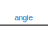
[diagram: root canvas - part 1/4, top left region]
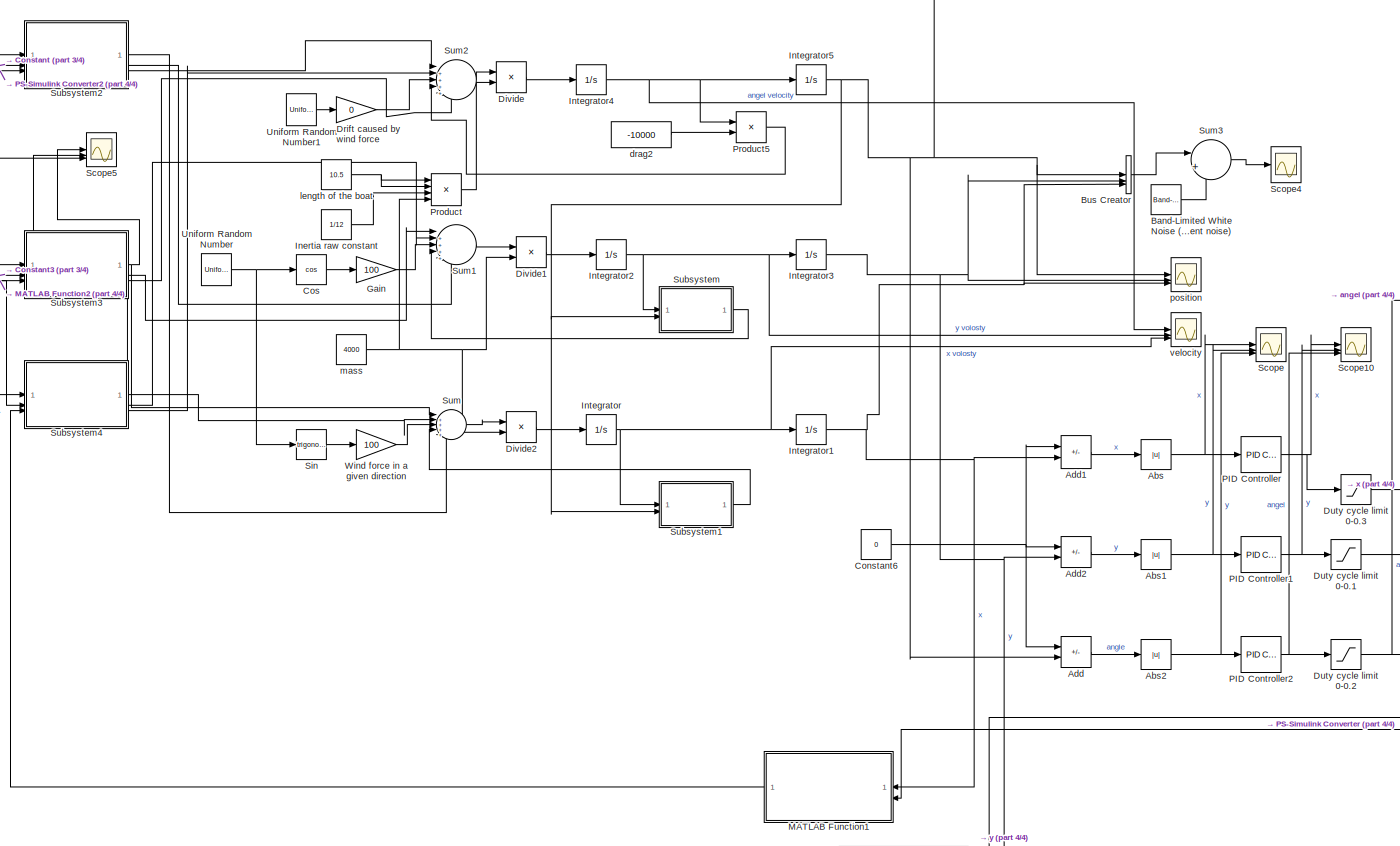
[diagram: root canvas - part 2/4, center side, full height]
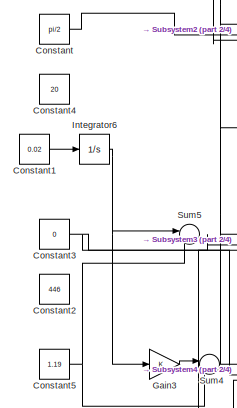
[diagram: root canvas - part 3/4, top left region]
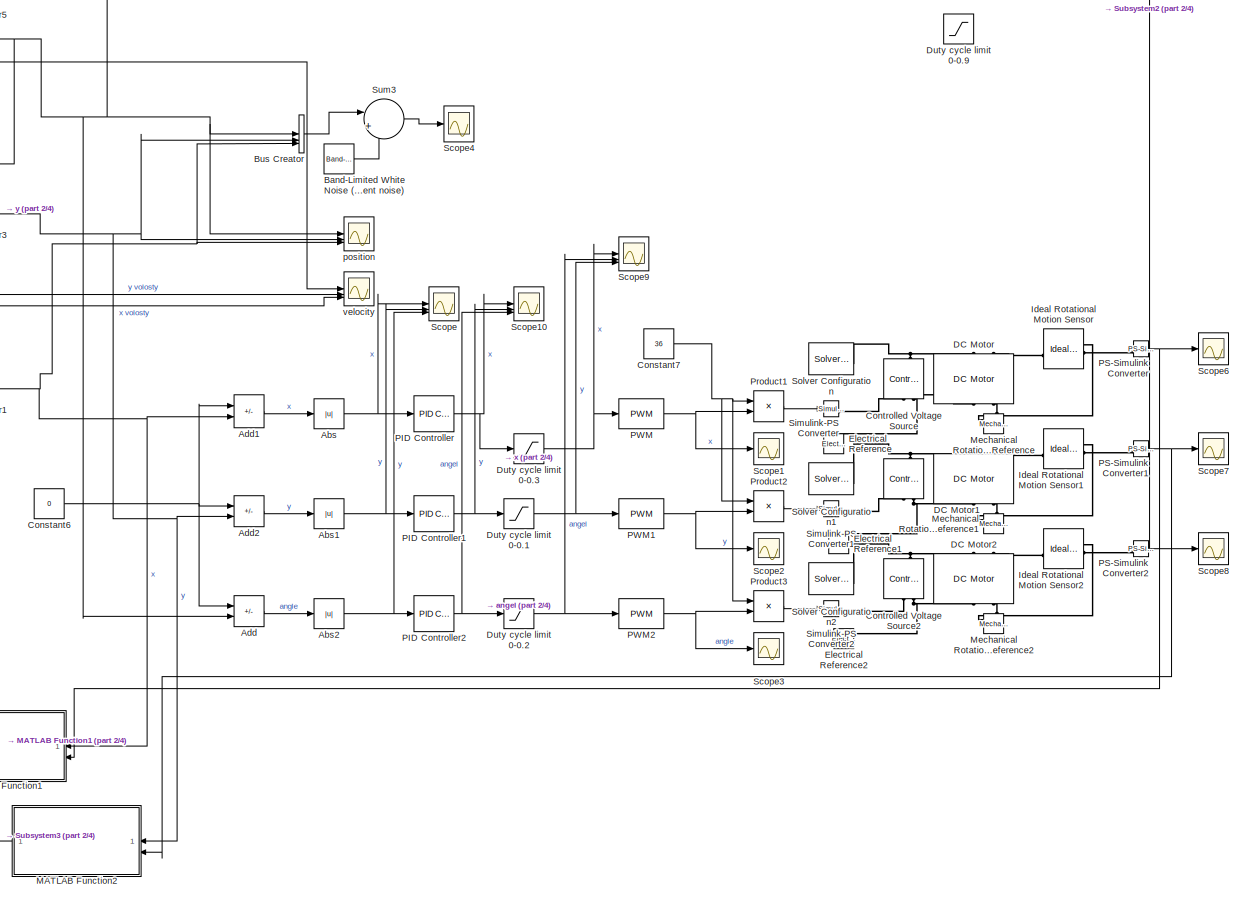
[diagram: root canvas - part 4/4, right side, full height]
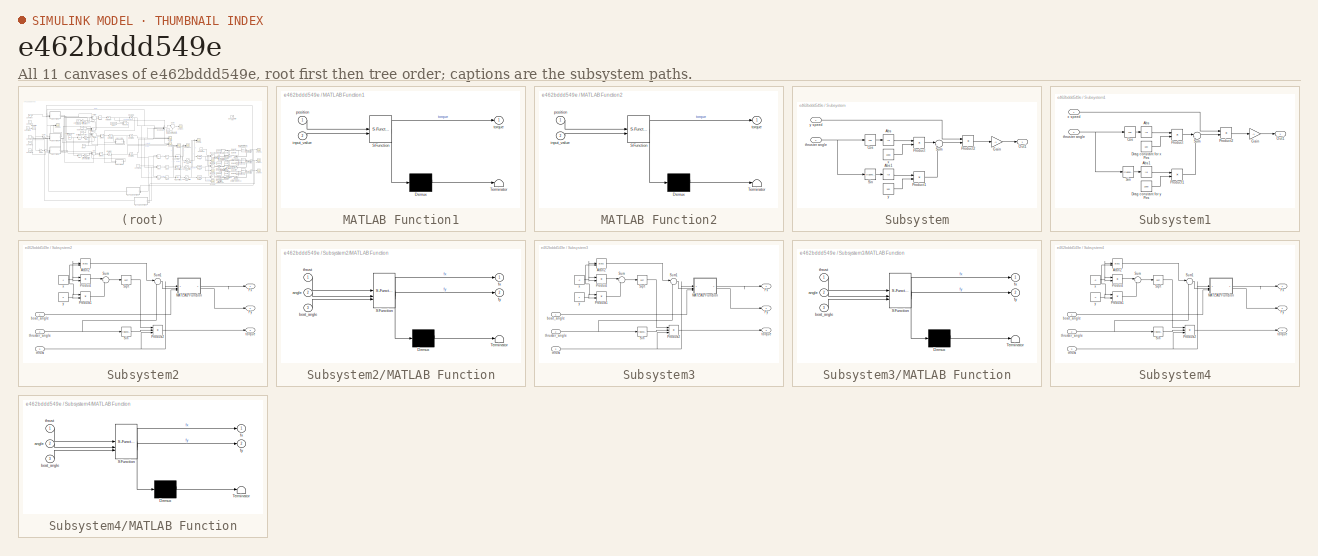
[diagram: thumbnail index - all 11 canvases of the model, root first then tree order]
MODEL slx_e462bddd549e
KIND model
CONFIG AbsTol = auto
CONFIG EnableMultiTasking = off
CONFIG FixedStep = auto
CONFIG MaxStep = auto
CONFIG MinStep = auto
CONFIG RelTol = 1e-3
CONFIG SampleTimeConstraint = Unconstrained
CONFIG SolverName = VariableStepAuto
CONFIG StartTime = 0.0
CONFIG StopTime = 1000.0
BLOCK [Reference]     REF=fl_lib/Electrical/Electrical Sources/Controlled Voltage
Source
  NameLocation = right
  SourceBlock = fl_lib/Electrical/Electrical Sources/Controlled Voltage\nSource
  SourceType = Controlled Voltage\nSource
BLOCK [Abs] Abs
  SaturateOnIntegerOverflow = off
BLOCK [Abs] Abs1
  SaturateOnIntegerOverflow = off
BLOCK [Abs] Abs2
  SaturateOnIntegerOverflow = off
BLOCK [Sum] Add
  IconShape = rectangular
  Inputs = +-
BLOCK [Sum] Add1
  IconShape = rectangular
  Inputs = +-
BLOCK [Sum] Add2
  IconShape = rectangular
  Inputs = +-
BLOCK [Reference] Band-Limited White Noise (Measurement noise)  REF=simulink/Sources/Band-Limited
White Noise
  SourceBlock = simulink/Sources/Band-Limited\nWhite Noise
  SourceType = Band-Limited White Noise.
BLOCK [BusCreator] Bus Creator
  DisplayOption = bar
  InheritFromInputs = on
  Inputs = 3
BLOCK [Constant] Constant
  Value = pi/2
BLOCK [Constant] Constant1
  Value = 0.02
BLOCK [Constant] Constant2
  Value = 446
BLOCK [Constant] Constant3
  Value = 0
BLOCK [Constant] Constant4
  Value = 20
BLOCK [Constant] Constant5
  Value = 1.19
BLOCK [Constant] Constant6
  Value = 0
BLOCK [Constant] Constant7
  Value = 36
BLOCK [Reference] Controlled Voltage Source  REF=fl_lib/Electrical/Electrical Sources/Controlled Voltage
Source
  NameLocation = right
  SourceBlock = fl_lib/Electrical/Electrical Sources/Controlled Voltage\nSource
  SourceType = Controlled Voltage\nSource
BLOCK [Reference] Controlled Voltage Source2  REF=fl_lib/Electrical/Electrical Sources/Controlled Voltage
Source
  NameLocation = right
  SourceBlock = fl_lib/Electrical/Electrical Sources/Controlled Voltage\nSource
  SourceType = Controlled Voltage\nSource
BLOCK [Trigonometry] Cos
  Operator = cos
BLOCK [Reference] DC Motor  REF=ee_lib/Electromechanical/Brushed Motors/DC Motor
  NameLocation = right
  SourceBlock = ee_lib/Electromechanical/Brushed Motors/DC Motor
  SourceType = DC Motor
BLOCK [Reference] DC Motor1  REF=ee_lib/Electromechanical/Brushed Motors/DC Motor
  NameLocation = right
  SourceBlock = ee_lib/Electromechanical/Brushed Motors/DC Motor
  SourceType = DC Motor
BLOCK [Reference] DC Motor2  REF=ee_lib/Electromechanical/Brushed Motors/DC Motor
  NameLocation = right
  SourceBlock = ee_lib/Electromechanical/Brushed Motors/DC Motor
  SourceType = DC Motor
BLOCK [Product] Divide
  Inputs = */
BLOCK [Product] Divide1
  Inputs = */
BLOCK [Product] Divide2
  Inputs = */
BLOCK [Gain] Drift caused by wind force
  Gain = 0
BLOCK [Saturate] Duty cycle limit 0-0.1
  LowerLimit = 0
  UpperLimit = 0.9
BLOCK [Saturate] Duty cycle limit 0-0.2
  LowerLimit = 0
  UpperLimit = 0.9
BLOCK [Saturate] Duty cycle limit 0-0.3
  LowerLimit = 0
  UpperLimit = 0.9
BLOCK [Saturate] Duty cycle limit 0-0.9
  LowerLimit = 0
  UpperLimit = 0.9
BLOCK [Reference] Electrical Reference  REF=fl_lib/Electrical/Electrical Elements/Electrical Reference
  NameLocation = right
  SourceBlock = fl_lib/Electrical/Electrical Elements/Electrical Reference
  SourceType = Electrical Reference
BLOCK [Reference] Electrical Reference1  REF=fl_lib/Electrical/Electrical Elements/Electrical Reference
  NameLocation = right
  SourceBlock = fl_lib/Electrical/Electrical Elements/Electrical Reference
  SourceType = Electrical Reference
BLOCK [Reference] Electrical Reference2  REF=fl_lib/Electrical/Electrical Elements/Electrical Reference
  NameLocation = right
  SourceBlock = fl_lib/Electrical/Electrical Elements/Electrical Reference
  SourceType = Electrical Reference
BLOCK [Gain] Gain
  Gain = 100
BLOCK [Gain] Gain3
BLOCK [Reference] Ideal Rotational Motion Sensor  REF=fl_lib/Mechanical/Mechanical Sensors/Ideal Rotational
Motion Sensor
  SourceBlock = fl_lib/Mechanical/Mechanical Sensors/Ideal Rotational\nMotion Sensor
  SourceType = Ideal Rotational\nMotion Sensor
BLOCK [Reference] Ideal Rotational Motion Sensor1  REF=fl_lib/Mechanical/Mechanical Sensors/Ideal Rotational
Motion Sensor
  SourceBlock = fl_lib/Mechanical/Mechanical Sensors/Ideal Rotational\nMotion Sensor
  SourceType = Ideal Rotational\nMotion Sensor
BLOCK [Reference] Ideal Rotational Motion Sensor2  REF=fl_lib/Mechanical/Mechanical Sensors/Ideal Rotational
Motion Sensor
  SourceBlock = fl_lib/Mechanical/Mechanical Sensors/Ideal Rotational\nMotion Sensor
  SourceType = Ideal Rotational\nMotion Sensor
BLOCK [Constant] Inertia raw constant
  Value = 1/12
BLOCK [Integrator] Integrator
BLOCK [Integrator] Integrator1
BLOCK [Integrator] Integrator2
BLOCK [Integrator] Integrator3
BLOCK [Integrator] Integrator4
BLOCK [Integrator] Integrator5
BLOCK [Integrator] Integrator6
  InitialCondition = pi/2
BLOCK [SubSystem] MATLAB Function1
  ErrorFcn = Stateflow.Translate.translate
  PermitHierarchicalResolution = ExplicitOnly
  SFBlockType = MATLAB Function
  TreatAsAtomicUnit = on
BLOCK [Demux] MATLAB Function1/ Demux 
  Outputs = 1
BLOCK [S-Function] MATLAB Function1/ SFunction 
  EnableBusSupport = on
  FunctionName = sf_sfun
  PortCounts = [2 2]
  SFcnIsStateOwnerBlock = off
  SFunctionDeploymentMode = off
  Tag = Stateflow S-Function 5
BLOCK [Terminator] MATLAB Function1/ Terminator 
BLOCK [Inport] MATLAB Function1/input_value
  Port = 2
BLOCK [Inport] MATLAB Function1/position
BLOCK [Outport] MATLAB Function1/torque
BLOCK [SubSystem] MATLAB Function2
  ErrorFcn = Stateflow.Translate.translate
  PermitHierarchicalResolution = ExplicitOnly
  SFBlockType = MATLAB Function
  TreatAsAtomicUnit = on
BLOCK [Demux] MATLAB Function2/ Demux 
  Outputs = 1
BLOCK [S-Function] MATLAB Function2/ SFunction 
  EnableBusSupport = on
  FunctionName = sf_sfun
  PortCounts = [2 2]
  SFcnIsStateOwnerBlock = off
  SFunctionDeploymentMode = off
  Tag = Stateflow S-Function 4
BLOCK [Terminator] MATLAB Function2/ Terminator 
BLOCK [Inport] MATLAB Function2/input_value
  Port = 2
BLOCK [Inport] MATLAB Function2/position
BLOCK [Outport] MATLAB Function2/torque
BLOCK [Reference] Mechanical Rotational Reference  REF=fl_lib/Mechanical/Rotational Elements/Mechanical
Rotational Reference
  NameLocation = right
  SourceBlock = fl_lib/Mechanical/Rotational Elements/Mechanical\nRotational Reference
  SourceType = Mechanical\nRotational Reference
BLOCK [Reference] Mechanical Rotational Reference1  REF=fl_lib/Mechanical/Rotational Elements/Mechanical
Rotational Reference
  NameLocation = right
  SourceBlock = fl_lib/Mechanical/Rotational Elements/Mechanical\nRotational Reference
  SourceType = Mechanical\nRotational Reference
BLOCK [Reference] Mechanical Rotational Reference2  REF=fl_lib/Mechanical/Rotational Elements/Mechanical
Rotational Reference
  NameLocation = right
  SourceBlock = fl_lib/Mechanical/Rotational Elements/Mechanical\nRotational Reference
  SourceType = Mechanical\nRotational Reference
BLOCK [Reference] PID Controller  REF=slpidlib/PID Controller
  LibrarySourceBlock = simulink/Continuous/PID Controller
  SourceBlock = slpidlib/PID Controller
  SourceType = PID 1dof
BLOCK [Reference] PID Controller1  REF=slpidlib/PID Controller
  LibrarySourceBlock = simulink/Continuous/PID Controller
  SourceBlock = slpidlib/PID Controller
  SourceType = PID 1dof
BLOCK [Reference] PID Controller2  REF=slpidlib/PID Controller
  LibrarySourceBlock = simulink/Continuous/PID Controller
  SourceBlock = slpidlib/PID Controller
  SourceType = PID 1dof
BLOCK [Reference] PS-Simulink Converter  REF=nesl_utility/PS-Simulink
Converter
  SourceBlock = nesl_utility/PS-Simulink\nConverter
  SourceType = PS-Simulink\nConverter
BLOCK [Reference] PS-Simulink Converter1  REF=nesl_utility/PS-Simulink
Converter
  SourceBlock = nesl_utility/PS-Simulink\nConverter
  SourceType = PS-Simulink\nConverter
BLOCK [Reference] PS-Simulink Converter2  REF=nesl_utility/PS-Simulink
Converter
  SourceBlock = nesl_utility/PS-Simulink\nConverter
  SourceType = PS-Simulink\nConverter
BLOCK [Reference] PWM  REF=simulink/Discontinuities/PWM
  DisableCoverage = on
  SourceBlock = simulink/Discontinuities/PWM
  SourceType = PWM
BLOCK [Reference] PWM1  REF=simulink/Discontinuities/PWM
  DisableCoverage = on
  SourceBlock = simulink/Discontinuities/PWM
  SourceType = PWM
BLOCK [Reference] PWM2  REF=simulink/Discontinuities/PWM
  DisableCoverage = on
  SourceBlock = simulink/Discontinuities/PWM
  SourceType = PWM
BLOCK [Product] Product
  Inputs = 4
BLOCK [Product] Product1
BLOCK [Product] Product2
BLOCK [Product] Product3
BLOCK [Product] Product5
BLOCK [Scope] Scope
  Floating = off
  NumInputPorts = 3
  ScopeSpecificationString = Simulink.scopes.TimeScopeBlockCfg('CurrentConfiguration', extmgr.ConfigurationSet(extmgr.Configuration('Core','General UI',true),extmgr.Configuration('Core','Source UI',true),extmgr.Configuration('Sources','WiredSimulink',true,'DataLoggingVariableName','ScopeData1'),extmgr.Configuration('Visuals','Time Domain',true,'SerializedDisplays',{struct('MinYLimReal','-25.80013','MaxYLimReal','232.20115','Y...<+1536ch>
BLOCK [Scope] Scope1
  Floating = off
  NumInputPorts = 1
  ScopeSpecificationString = Simulink.scopes.TimeScopeBlockCfg('CurrentConfiguration', extmgr.ConfigurationSet(extmgr.Configuration('Core','General UI',true),extmgr.Configuration('Core','Source UI',true),extmgr.Configuration('Sources','WiredSimulink',true,'DataLoggingVariableName','ScopeData2'),extmgr.Configuration('Visuals','Time Domain',true,'SerializedDisplays',{struct('MinYLimReal','-0.125','MaxYLimReal','1.125','YLabelRe...<+1485ch>
BLOCK [Scope] Scope10
  Floating = off
  NumInputPorts = 3
  ScopeSpecificationString = Simulink.scopes.TimeScopeBlockCfg('CurrentConfiguration', extmgr.ConfigurationSet(extmgr.Configuration('Core','General UI',true),extmgr.Configuration('Core','Source UI',true),extmgr.Configuration('Sources','WiredSimulink',true,'DataLoggingVariableName','ScopeData9'),extmgr.Configuration('Visuals','Time Domain',true,'SerializedDisplays',{struct('MinYLimReal','-2896.36826','MaxYLimReal','26067.31378...<+1608ch>
BLOCK [Scope] Scope2
  Floating = off
  NumInputPorts = 1
  ScopeSpecificationString = Simulink.scopes.TimeScopeBlockCfg('CurrentConfiguration', extmgr.ConfigurationSet(extmgr.Configuration('Core','General UI',true),extmgr.Configuration('Core','Source UI',true),extmgr.Configuration('Sources','WiredSimulink',true,'DataLoggingVariableName','ScopeData3'),extmgr.Configuration('Visuals','Time Domain',true,'SerializedDisplays',{struct('MinYLimReal','-0.125','MaxYLimReal','1.125','YLabelRe...<+1482ch>
BLOCK [Scope] Scope3
  Floating = off
  NumInputPorts = 1
  ScopeSpecificationString = Simulink.scopes.TimeScopeBlockCfg('CurrentConfiguration', extmgr.ConfigurationSet(extmgr.Configuration('Core','General UI',true),extmgr.Configuration('Core','Source UI',true),extmgr.Configuration('Sources','WiredSimulink',true,'DataLoggingVariableName','ScopeData4'),extmgr.Configuration('Visuals','Time Domain',true,'SerializedDisplays',{struct('MinYLimReal','-0.125','MaxYLimReal','1.125','YLabelRe...<+1487ch>
BLOCK [Scope] Scope4
  Floating = off
  NumInputPorts = 1
  ScopeSpecificationString = Simulink.scopes.TimeScopeBlockCfg('CurrentConfiguration', extmgr.ConfigurationSet(extmgr.Configuration('Core','General UI',true),extmgr.Configuration('Core','Source UI',true),extmgr.Configuration('Sources','WiredSimulink',true,'DataLoggingVariableName','ScopeData4'),extmgr.Configuration('Visuals','Time Domain',true,'SerializedDisplays',{struct('MinYLimReal','-41.13835','MaxYLimReal','149.57105','Y...<+1508ch>
BLOCK [Scope] Scope5
  Floating = off
  NumInputPorts = 3
  ScopeSpecificationString = Simulink.scopes.TimeScopeBlockCfg('CurrentConfiguration', extmgr.ConfigurationSet(extmgr.Configuration('Core','General UI',true),extmgr.Configuration('Core','Source UI',true),extmgr.Configuration('Sources','WiredSimulink',true,'DataLoggingVariableName','ScopeData1'),extmgr.Configuration('Visuals','Time Domain',true,'SerializedDisplays',{struct('MinYLimReal','-718.52992','MaxYLimReal','719.97429','...<+1525ch>
BLOCK [Scope] Scope6
  Floating = off
  NumInputPorts = 1
  ScopeSpecificationString = Simulink.scopes.TimeScopeBlockCfg('CurrentConfiguration', extmgr.ConfigurationSet(extmgr.Configuration('Core','General UI',true),extmgr.Configuration('Core','Source UI',true),extmgr.Configuration('Sources','WiredSimulink',true,'DataLoggingVariableName','ScopeData5'),extmgr.Configuration('Visuals','Time Domain',true,'SerializedDisplays',{struct('MinYLimReal','-20.14236','MaxYLimReal','644.08797','Y...<+1479ch>
BLOCK [Scope] Scope7
  Floating = off
  NumInputPorts = 1
  ScopeSpecificationString = Simulink.scopes.TimeScopeBlockCfg('CurrentConfiguration', extmgr.ConfigurationSet(extmgr.Configuration('Core','General UI',true),extmgr.Configuration('Core','Source UI',true),extmgr.Configuration('Sources','WiredSimulink',true,'DataLoggingVariableName','ScopeData6'),extmgr.Configuration('Visuals','Time Domain',true,'SerializedDisplays',{struct('MinYLimReal','-20.1396','MaxYLimReal','644.12728','YL...<+1507ch>
BLOCK [Scope] Scope8
  Floating = off
  NumInputPorts = 1
  ScopeSpecificationString = Simulink.scopes.TimeScopeBlockCfg('CurrentConfiguration', extmgr.ConfigurationSet(extmgr.Configuration('Core','General UI',true),extmgr.Configuration('Core','Source UI',true),extmgr.Configuration('Sources','WiredSimulink',true,'DataLoggingVariableName','ScopeData7'),extmgr.Configuration('Visuals','Time Domain',true,'SerializedDisplays',{struct('MinYLimReal','-211.42866','MaxYLimReal','205.78427','...<+1484ch>
BLOCK [Scope] Scope9
  Floating = off
  NumInputPorts = 3
  ScopeSpecificationString = Simulink.scopes.TimeScopeBlockCfg('CurrentConfiguration', extmgr.ConfigurationSet(extmgr.Configuration('Core','General UI',true),extmgr.Configuration('Core','Source UI',true),extmgr.Configuration('Sources','WiredSimulink',true,'DataLoggingVariableName','ScopeData8'),extmgr.Configuration('Visuals','Time Domain',true,'SerializedDisplays',{struct('MinYLimReal','-0.11109','MaxYLimReal','0.9998','YLabe...<+1567ch>
BLOCK [Reference] Simulink-PS Converter  REF=nesl_utility/Simulink-PS
Converter
  SourceBlock = nesl_utility/Simulink-PS\nConverter
  SourceType = Simulink-PS\nConverter
BLOCK [Reference] Simulink-PS Converter1  REF=nesl_utility/Simulink-PS
Converter
  SourceBlock = nesl_utility/Simulink-PS\nConverter
  SourceType = Simulink-PS\nConverter
BLOCK [Reference] Simulink-PS Converter2  REF=nesl_utility/Simulink-PS
Converter
  SourceBlock = nesl_utility/Simulink-PS\nConverter
  SourceType = Simulink-PS\nConverter
BLOCK [Trigonometry] Sin
BLOCK [Reference] Solver Configuration  REF=nesl_utility/Solver
Configuration
  SourceBlock = nesl_utility/Solver\nConfiguration
  SourceType = Solver\nConfiguration
BLOCK [Reference] Solver Configuration1  REF=nesl_utility/Solver
Configuration
  SourceBlock = nesl_utility/Solver\nConfiguration
  SourceType = Solver\nConfiguration
BLOCK [Reference] Solver Configuration2  REF=nesl_utility/Solver
Configuration
  SourceBlock = nesl_utility/Solver\nConfiguration
  SourceType = Solver\nConfiguration
BLOCK [SubSystem] Subsystem
BLOCK [Abs] Subsystem/Abs
  SaturateOnIntegerOverflow = off
BLOCK [Abs] Subsystem/Abs1
  SaturateOnIntegerOverflow = off
BLOCK [Trigonometry] Subsystem/Cos
  Operator = cos
BLOCK [Gain] Subsystem/Gain
  Gain = -1
BLOCK [Outport] Subsystem/Out1
BLOCK [Product] Subsystem/Product
BLOCK [Product] Subsystem/Product1
BLOCK [Product] Subsystem/Product2
BLOCK [Trigonometry] Subsystem/Sin
BLOCK [Sum] Subsystem/Sum
  Inputs = |++
BLOCK [Inport] Subsystem/thruster angle
  Port = 2
BLOCK [Constant] Subsystem/x
  Value = 1000
BLOCK [Constant] Subsystem/y
  Value = 100
BLOCK [Inport] Subsystem/y speed
BLOCK [SubSystem] Subsystem1
BLOCK [Abs] Subsystem1/Abs
  SaturateOnIntegerOverflow = off
BLOCK [Abs] Subsystem1/Abs1
  SaturateOnIntegerOverflow = off
BLOCK [Trigonometry] Subsystem1/Cos
  Operator = cos
BLOCK [Constant] Subsystem1/Drag constant for x Pos
  Value = 100
BLOCK [Constant] Subsystem1/Drag constant for y Pos
  Value = 1000
BLOCK [Gain] Subsystem1/Gain
  Gain = -1
BLOCK [Outport] Subsystem1/Out1
BLOCK [Product] Subsystem1/Product
BLOCK [Product] Subsystem1/Product1
BLOCK [Product] Subsystem1/Product2
BLOCK [Trigonometry] Subsystem1/Sin
BLOCK [Sum] Subsystem1/Sum
  Inputs = |++
BLOCK [Inport] Subsystem1/thruster angle
  Port = 2
BLOCK [Inport] Subsystem1/x speed
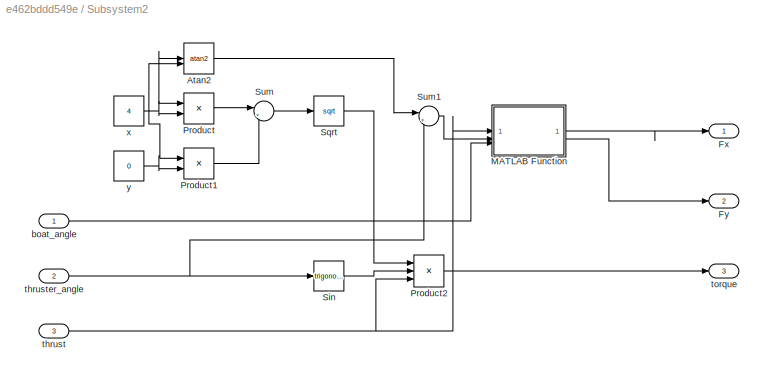
BLOCK [SubSystem] Subsystem2
BLOCK [Trigonometry] Subsystem2/Atan2
  Operator = atan2
BLOCK [Outport] Subsystem2/Fx
BLOCK [Outport] Subsystem2/Fy
  Port = 2
BLOCK [SubSystem] Subsystem2/MATLAB Function
  ErrorFcn = Stateflow.Translate.translate
  PermitHierarchicalResolution = ExplicitOnly
  SFBlockType = MATLAB Function
  TreatAsAtomicUnit = on
BLOCK [Demux] Subsystem2/MATLAB Function/ Demux 
  Outputs = 1
BLOCK [S-Function] Subsystem2/MATLAB Function/ SFunction 
  EnableBusSupport = on
  FunctionName = sf_sfun
  PortCounts = [3 3]
  SFcnIsStateOwnerBlock = off
  SFunctionDeploymentMode = off
  Tag = Stateflow S-Function 2
BLOCK [Terminator] Subsystem2/MATLAB Function/ Terminator 
BLOCK [Inport] Subsystem2/MATLAB Function/angle
  Port = 2
BLOCK [Inport] Subsystem2/MATLAB Function/boat_angle
  Port = 3
BLOCK [Outport] Subsystem2/MATLAB Function/fx
BLOCK [Outport] Subsystem2/MATLAB Function/fy
  Port = 2
BLOCK [Inport] Subsystem2/MATLAB Function/thrust
BLOCK [Product] Subsystem2/Product
BLOCK [Product] Subsystem2/Product1
BLOCK [Product] Subsystem2/Product2
  Inputs = 3
BLOCK [Trigonometry] Subsystem2/Sin
BLOCK [Sqrt] Subsystem2/Sqrt
BLOCK [Sum] Subsystem2/Sum
  Inputs = |++
BLOCK [Sum] Subsystem2/Sum1
  Inputs = |++
BLOCK [Inport] Subsystem2/boat_angle
BLOCK [Inport] Subsystem2/thrust
  Port = 3
BLOCK [Inport] Subsystem2/thruster_angle
  Port = 2
BLOCK [Outport] Subsystem2/torque
  Port = 3
BLOCK [Constant] Subsystem2/x
  Value = 4
BLOCK [Constant] Subsystem2/y
  Value = 0
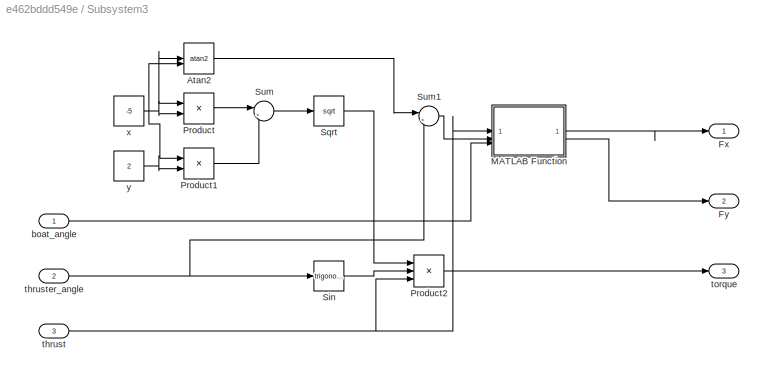
BLOCK [SubSystem] Subsystem3
BLOCK [Trigonometry] Subsystem3/Atan2
  Operator = atan2
BLOCK [Outport] Subsystem3/Fx
BLOCK [Outport] Subsystem3/Fy
  Port = 2
BLOCK [SubSystem] Subsystem3/MATLAB Function
  ErrorFcn = Stateflow.Translate.translate
  PermitHierarchicalResolution = ExplicitOnly
  SFBlockType = MATLAB Function
  TreatAsAtomicUnit = on
BLOCK [Demux] Subsystem3/MATLAB Function/ Demux 
  Outputs = 1
BLOCK [S-Function] Subsystem3/MATLAB Function/ SFunction 
  EnableBusSupport = on
  FunctionName = sf_sfun
  PortCounts = [3 3]
  SFcnIsStateOwnerBlock = off
  SFunctionDeploymentMode = off
  Tag = Stateflow S-Function 1
BLOCK [Terminator] Subsystem3/MATLAB Function/ Terminator 
BLOCK [Inport] Subsystem3/MATLAB Function/angle
  Port = 2
BLOCK [Inport] Subsystem3/MATLAB Function/boat_angle
  Port = 3
BLOCK [Outport] Subsystem3/MATLAB Function/fx
BLOCK [Outport] Subsystem3/MATLAB Function/fy
  Port = 2
BLOCK [Inport] Subsystem3/MATLAB Function/thrust
BLOCK [Product] Subsystem3/Product
BLOCK [Product] Subsystem3/Product1
BLOCK [Product] Subsystem3/Product2
  Inputs = 3
BLOCK [Trigonometry] Subsystem3/Sin
BLOCK [Sqrt] Subsystem3/Sqrt
BLOCK [Sum] Subsystem3/Sum
  Inputs = |++
BLOCK [Sum] Subsystem3/Sum1
  Inputs = |++
BLOCK [Inport] Subsystem3/boat_angle
BLOCK [Inport] Subsystem3/thrust
  Port = 3
BLOCK [Inport] Subsystem3/thruster_angle
  Port = 2
BLOCK [Outport] Subsystem3/torque
  Port = 3
BLOCK [Constant] Subsystem3/x
  Value = -5
BLOCK [Constant] Subsystem3/y
  Value = 2
BLOCK [SubSystem] Subsystem4
BLOCK [Trigonometry] Subsystem4/Atan2
  Operator = atan2
BLOCK [Outport] Subsystem4/Fx
BLOCK [Outport] Subsystem4/Fy
  Port = 2
BLOCK [SubSystem] Subsystem4/MATLAB Function
  ErrorFcn = Stateflow.Translate.translate
  PermitHierarchicalResolution = ExplicitOnly
  SFBlockType = MATLAB Function
  TreatAsAtomicUnit = on
BLOCK [Demux] Subsystem4/MATLAB Function/ Demux 
  Outputs = 1
BLOCK [S-Function] Subsystem4/MATLAB Function/ SFunction 
  EnableBusSupport = on
  FunctionName = sf_sfun
  PortCounts = [3 3]
  SFcnIsStateOwnerBlock = off
  SFunctionDeploymentMode = off
  Tag = Stateflow S-Function 3
BLOCK [Terminator] Subsystem4/MATLAB Function/ Terminator 
BLOCK [Inport] Subsystem4/MATLAB Function/angle
  Port = 2
BLOCK [Inport] Subsystem4/MATLAB Function/boat_angle
  Port = 3
BLOCK [Outport] Subsystem4/MATLAB Function/fx
BLOCK [Outport] Subsystem4/MATLAB Function/fy
  Port = 2
BLOCK [Inport] Subsystem4/MATLAB Function/thrust
BLOCK [Product] Subsystem4/Product
BLOCK [Product] Subsystem4/Product1
BLOCK [Product] Subsystem4/Product2
  Inputs = 3
BLOCK [Trigonometry] Subsystem4/Sin
BLOCK [Sqrt] Subsystem4/Sqrt
BLOCK [Sum] Subsystem4/Sum
  Inputs = |++
BLOCK [Sum] Subsystem4/Sum1
  Inputs = |++
BLOCK [Inport] Subsystem4/boat_angle
BLOCK [Inport] Subsystem4/thrust
  Port = 3
BLOCK [Inport] Subsystem4/thruster_angle
  Port = 2
BLOCK [Outport] Subsystem4/torque
  Port = 3
BLOCK [Constant] Subsystem4/x
  Value = -5
BLOCK [Constant] Subsystem4/y
  Value = -2
BLOCK [Sum] Sum
  Inputs = |+++++
BLOCK [Sum] Sum1
  Inputs = |+++++
BLOCK [Sum] Sum2
  Inputs = |+++++
BLOCK [Sum] Sum3
  Inputs = |++
BLOCK [Sum] Sum4
  Inputs = |+-
BLOCK [Sum] Sum5
  Inputs = |++
BLOCK [UniformRandomNumber] Uniform Random Number
  Maximum = 6.28
  Minimum = 0
  SampleTime = 0.1
  Seed = 0.1
BLOCK [UniformRandomNumber] Uniform Random Number1
  Maximum = 6.28
  Minimum = 0
  SampleTime = 0.1
  Seed = 2
BLOCK [Gain] Wind force in a given direction
  Gain = 100
BLOCK [Constant] drag2
  Value = -10000
BLOCK [Constant] length of the boat
  Value = 10.5
BLOCK [Constant] mass
  Value = 4000
BLOCK [Scope] position
  Floating = off
  NumInputPorts = 3
  ScopeSpecificationString = Simulink.scopes.TimeScopeBlockCfg('CurrentConfiguration', extmgr.ConfigurationSet(extmgr.Configuration('Core','General UI',true),extmgr.Configuration('Core','Source UI',true),extmgr.Configuration('Sources','WiredSimulink',true,'DataLoggingVariableName','ScopeData3'),extmgr.Configuration('Visuals','Time Domain',true,'SerializedDisplays',{struct('MinYLimReal','-40.05187','MaxYLimReal','144.81588','Y...<+1854ch>
BLOCK [Scope] velocity
  Floating = off
  NumInputPorts = 3
  ScopeSpecificationString = Simulink.scopes.TimeScopeBlockCfg('CurrentConfiguration', extmgr.ConfigurationSet(extmgr.Configuration('Core','General UI',true),extmgr.Configuration('Core','Source UI',true),extmgr.Configuration('Sources','WiredSimulink',true,'DataLoggingVariableName','ScopeData2'),extmgr.Configuration('Visuals','Time Domain',true,'SerializedDisplays',{struct('MinYLimReal','-0.60739','MaxYLimReal','0.70276','YLab...<+1845ch>
NET Abs1:1 -> PID Controller1:1, Scope:2
NET Abs2:1 -> PID Controller2:1, Scope:3
NET Abs:1 -> PID Controller:1, Scope:1
LINE Add1:1 -> Abs:1
LINE Add2:1 -> Abs1:1
LINE Add:1 -> Abs2:1
LINE Band-Limited White Noise (Measurement noise):1 -> Sum3:2
LINE Bus Creator:1 -> Sum3:1
LINE Constant1:1 -> Integrator6:1
NET Constant3:1 -> Subsystem3:2, Subsystem4:2
NET Constant5:1 -> Sum4:2, Sum5:2
NET Constant6:1 -> Add1:1, Add2:1, Add:1
NET Constant7:1 -> Product1:1, Product2:1, Product3:1
LINE Constant:1 -> Subsystem2:2
LINE Cos:1 -> Gain:1
LINE Divide1:1 -> Integrator2:1
LINE Divide2:1 -> Integrator:1
LINE Divide:1 -> Integrator4:1
LINE Drift caused by wind force:1 -> Sum2:3
NET Duty cycle limit 0-0.1:1 -> PWM1:1, Scope9:3
NET Duty cycle limit 0-0.2:1 -> PWM2:1, Scope9:2
NET Duty cycle limit 0-0.3:1 -> PWM:1, Scope9:1
LINE Gain3:1 -> Sum4:1
LINE Gain:1 -> Sum1:3
LINE Inertia raw constant:1 -> Product:3
NET Integrator1:1 -> Add1:2, Bus Creator:3, MATLAB Function1:1, position:3
NET Integrator2:1 -> Integrator3:1, Subsystem:1, velocity:2
NET Integrator3:1 -> Add2:2, Bus Creator:2, MATLAB Function2:1, position:2
NET Integrator4:1 -> Integrator5:1, Product5:1, velocity:1
NET Integrator5:1 -> Add:2, Bus Creator:1, Scope5:3, Subsystem1:2, Subsystem2:1, Subsystem3:1, Subsystem4:1, Subsystem:2, position:1
NET Integrator6:1 -> Gain3:1, Sum5:1
NET Integrator:1 -> Integrator1:1, Subsystem1:1, velocity:3
LINE MATLAB Function1:1 -> Subsystem4:3
LINE MATLAB Function2:1 -> Subsystem3:3
NET PID Controller1:1 -> Duty cycle limit 0-0.1:1, Scope10:2
NET PID Controller2:1 -> Duty cycle limit 0-0.2:1, Scope10:3
NET PID Controller:1 -> Duty cycle limit 0-0.3:1, Scope10:1
NET PS-Simulink Converter1:1 -> MATLAB Function2:2, Scope7:1
NET PS-Simulink Converter2:1 -> Scope8:1, Subsystem2:3
NET PS-Simulink Converter:1 -> MATLAB Function1:2, Scope6:1
NET PWM1:1 -> Product2:2, Scope2:1
NET PWM2:1 -> Product3:2, Scope3:1
NET PWM:1 -> Product1:2, Scope1:1
LINE Product1:1 -> Simulink-PS Converter:1
LINE Product2:1 -> Simulink-PS Converter1:1
LINE Product3:1 -> Simulink-PS Converter2:1
LINE Product5:1 -> Sum2:4
LINE Product:1 -> Divide:2
LINE Sin:1 -> Wind force in a given direction:1
LINE Subsystem/Abs1:1 -> Subsystem/Product1:1
LINE Subsystem/Abs:1 -> Subsystem/Product:1
LINE Subsystem/Cos:1 -> Subsystem/Abs:1
LINE Subsystem/Gain:1 -> Subsystem/Out1:1
LINE Subsystem/Product1:1 -> Subsystem/Sum:2
LINE Subsystem/Product2:1 -> Subsystem/Gain:1
LINE Subsystem/Product:1 -> Subsystem/Sum:1
LINE Subsystem/Sin:1 -> Subsystem/Abs1:1
LINE Subsystem/Sum:1 -> Subsystem/Product2:2
NET Subsystem/thruster angle:1 -> Subsystem/Cos:1, Subsystem/Sin:1
LINE Subsystem/x:1 -> Subsystem/Product:2
LINE Subsystem/y speed:1 -> Subsystem/Product2:1
LINE Subsystem/y:1 -> Subsystem/Product1:2
LINE Subsystem1/Abs1:1 -> Subsystem1/Product1:1
LINE Subsystem1/Abs:1 -> Subsystem1/Product:1
LINE Subsystem1/Cos:1 -> Subsystem1/Abs:1
LINE Subsystem1/Drag constant for x Pos:1 -> Subsystem1/Product:2
LINE Subsystem1/Drag constant for y Pos:1 -> Subsystem1/Product1:2
LINE Subsystem1/Gain:1 -> Subsystem1/Out1:1
LINE Subsystem1/Product1:1 -> Subsystem1/Sum:2
LINE Subsystem1/Product2:1 -> Subsystem1/Gain:1
LINE Subsystem1/Product:1 -> Subsystem1/Sum:1
LINE Subsystem1/Sin:1 -> Subsystem1/Abs1:1
LINE Subsystem1/Sum:1 -> Subsystem1/Product2:2
NET Subsystem1/thruster angle:1 -> Subsystem1/Cos:1, Subsystem1/Sin:1
LINE Subsystem1/x speed:1 -> Subsystem1/Product2:1
LINE Subsystem1:1 -> Sum:4
LINE Subsystem2/Atan2:1 -> Subsystem2/Sum1:1
LINE Subsystem2/MATLAB Function:1 -> Subsystem2/Fx:1
LINE Subsystem2/MATLAB Function:2 -> Subsystem2/Fy:1
LINE Subsystem2/Product1:1 -> Subsystem2/Sum:2
LINE Subsystem2/Product2:1 -> Subsystem2/torque:1
LINE Subsystem2/Product:1 -> Subsystem2/Sum:1
LINE Subsystem2/Sin:1 -> Subsystem2/Product2:2
LINE Subsystem2/Sqrt:1 -> Subsystem2/Product2:1
LINE Subsystem2/Sum1:1 -> Subsystem2/MATLAB Function:2
LINE Subsystem2/Sum:1 -> Subsystem2/Sqrt:1
LINE Subsystem2/boat_angle:1 -> Subsystem2/MATLAB Function:3
NET Subsystem2/thrust:1 -> Subsystem2/MATLAB Function:1, Subsystem2/Product2:3
NET Subsystem2/thruster_angle:1 -> Subsystem2/Sin:1, Subsystem2/Sum1:2
NET Subsystem2/x:1 -> Subsystem2/Atan2:1, Subsystem2/Product:1, Subsystem2/Product:2
NET Subsystem2/y:1 -> Subsystem2/Atan2:2, Subsystem2/Product1:1, Subsystem2/Product1:2
LINE Subsystem2:1 -> Sum:5
LINE Subsystem2:2 -> Sum1:5
LINE Subsystem2:3 -> Sum2:1
LINE Subsystem3/Atan2:1 -> Subsystem3/Sum1:1
LINE Subsystem3/MATLAB Function:1 -> Subsystem3/Fx:1
LINE Subsystem3/MATLAB Function:2 -> Subsystem3/Fy:1
LINE Subsystem3/Product1:1 -> Subsystem3/Sum:2
LINE Subsystem3/Product2:1 -> Subsystem3/torque:1
LINE Subsystem3/Product:1 -> Subsystem3/Sum:1
LINE Subsystem3/Sin:1 -> Subsystem3/Product2:2
LINE Subsystem3/Sqrt:1 -> Subsystem3/Product2:1
LINE Subsystem3/Sum1:1 -> Subsystem3/MATLAB Function:2
LINE Subsystem3/Sum:1 -> Subsystem3/Sqrt:1
LINE Subsystem3/boat_angle:1 -> Subsystem3/MATLAB Function:3
NET Subsystem3/thrust:1 -> Subsystem3/MATLAB Function:1, Subsystem3/Product2:3
NET Subsystem3/thruster_angle:1 -> Subsystem3/Sin:1, Subsystem3/Sum1:2
NET Subsystem3/x:1 -> Subsystem3/Atan2:1, Subsystem3/Product:1, Subsystem3/Product:2
NET Subsystem3/y:1 -> Subsystem3/Atan2:2, Subsystem3/Product1:1, Subsystem3/Product1:2
NET Subsystem3:1 -> Scope5:1, Sum:1
LINE Subsystem3:2 -> Sum1:1
LINE Subsystem3:3 -> Sum2:5
LINE Subsystem4/Atan2:1 -> Subsystem4/Sum1:1
LINE Subsystem4/MATLAB Function:1 -> Subsystem4/Fx:1
LINE Subsystem4/MATLAB Function:2 -> Subsystem4/Fy:1
LINE Subsystem4/Product1:1 -> Subsystem4/Sum:2
LINE Subsystem4/Product2:1 -> Subsystem4/torque:1
LINE Subsystem4/Product:1 -> Subsystem4/Sum:1
LINE Subsystem4/Sin:1 -> Subsystem4/Product2:2
LINE Subsystem4/Sqrt:1 -> Subsystem4/Product2:1
LINE Subsystem4/Sum1:1 -> Subsystem4/MATLAB Function:2
LINE Subsystem4/Sum:1 -> Subsystem4/Sqrt:1
LINE Subsystem4/boat_angle:1 -> Subsystem4/MATLAB Function:3
NET Subsystem4/thrust:1 -> Subsystem4/MATLAB Function:1, Subsystem4/Product2:3
NET Subsystem4/thruster_angle:1 -> Subsystem4/Sin:1, Subsystem4/Sum1:2
NET Subsystem4/x:1 -> Subsystem4/Atan2:1, Subsystem4/Product:1, Subsystem4/Product:2
NET Subsystem4/y:1 -> Subsystem4/Atan2:2, Subsystem4/Product1:1, Subsystem4/Product1:2
NET Subsystem4:1 -> Scope5:2, Sum:2
LINE Subsystem4:2 -> Sum1:2
LINE Subsystem4:3 -> Sum2:2
LINE Subsystem:1 -> Sum1:4
LINE Sum1:1 -> Divide1:1
LINE Sum2:1 -> Divide:1
LINE Sum3:1 -> Scope4:1
LINE Sum:1 -> Divide2:1
LINE Uniform Random Number1:1 -> Drift caused by wind force:1
NET Uniform Random Number:1 -> Cos:1, Sin:1
LINE Wind force in a given direction:1 -> Sum:3
LINE drag2:1 -> Product5:2
NET length of the boat:1 -> Product:1, Product:2
NET mass:1 -> Divide1:2, Divide2:2, Product:4
PNET net1:   :LConn1 -- DC Motor1:LConn1 -- Solver Configuration1:RConn1
PLINE   :RConn1 -- Simulink-PS Converter1:RConn1
PNET net2:   :RConn2 -- DC Motor1:RConn1 -- Electrical Reference1:LConn1
PNET net3: Controlled Voltage Source2:LConn1 -- DC Motor2:LConn1 -- Solver Configuration2:RConn1
PLINE Controlled Voltage Source2:RConn1 -- Simulink-PS Converter2:RConn1
PNET net4: Controlled Voltage Source2:RConn2 -- DC Motor2:RConn1 -- Electrical Reference2:LConn1
PNET net5: Controlled Voltage Source:LConn1 -- DC Motor:LConn1 -- Solver Configuration:RConn1
PLINE Controlled Voltage Source:RConn1 -- Simulink-PS Converter:RConn1
PNET net6: Controlled Voltage Source:RConn2 -- DC Motor:RConn1 -- Electrical Reference:LConn1
PLINE DC Motor1:LConn2 -- Ideal Rotational Motion Sensor1:LConn1
PNET net7: DC Motor1:RConn2 -- Ideal Rotational Motion Sensor1:RConn1 -- Mechanical Rotational Reference1:LConn1
PLINE DC Motor2:LConn2 -- Ideal Rotational Motion Sensor2:LConn1
PNET net8: DC Motor2:RConn2 -- Ideal Rotational Motion Sensor2:RConn1 -- Mechanical Rotational Reference2:LConn1
PLINE DC Motor:LConn2 -- Ideal Rotational Motion Sensor:LConn1
PNET net9: DC Motor:RConn2 -- Ideal Rotational Motion Sensor:RConn1 -- Mechanical Rotational Reference:LConn1
PLINE Ideal Rotational Motion Sensor1:RConn2 -- PS-Simulink Converter1:LConn1
PLINE Ideal Rotational Motion Sensor2:RConn2 -- PS-Simulink Converter2:LConn1
PLINE Ideal Rotational Motion Sensor:RConn2 -- PS-Simulink Converter:LConn1
note: NET lines group one-source signal fan-out (src -> all destinations, sorted); 1:1 wires keep LINE; PNET lines group multi-terminal physical nets as a canonical sorted terminal list (undirected conserving connections); 2-terminal nets keep the pairwise PLINE form
CHART Subsystem3/MATLAB Function states=1 transitions=1
  STATE_LABEL 'eML_blk_kernel()'
  STATE_LABEL 'SCRIPT:\nfunction [fx,fy] = fcn(thrust, angle, boat_angle)\n\nRx = [cos(boat_angle) -sin(boat_angle); sin(boat_angle) cos(boat_angle)];\nf = [sin(angle); cos(angle)];\nmf = (Rx*f)*thrust*(-1);\nfx = mf(1);\nfy = mf(2);'
CHART Subsystem2/MATLAB Function states=1 transitions=1
  STATE_LABEL 'eML_blk_kernel()'
  STATE_LABEL 'SCRIPT:\nfunction [fx,fy] = fcn(thrust, angle, boat_angle)\n\nRx = [cos(boat_angle) -sin(boat_angle); sin(boat_angle) cos(boat_angle)];\nf = [sin(angle); cos(angle)];\nmf = (Rx*f)*thrust;\nfx = mf(1);\nfy = mf(2);'
CHART Subsystem4/MATLAB Function states=1 transitions=1
  STATE_LABEL 'eML_blk_kernel()'
  STATE_LABEL 'SCRIPT:\nfunction [fx,fy] = fcn(thrust, angle, boat_angle)\n\nRx = [cos(boat_angle) -sin(boat_angle); sin(boat_angle) cos(boat_angle)];\nf = [sin(angle); cos(angle)];\nmf = (Rx*f)*thrust*(-1);\nfx = mf(1);\nfy = mf(2);'
CHART MATLAB Function2 states=1 transitions=1
  STATE_LABEL 'eML_blk_kernel()'
  STATE_LABEL 'SCRIPT:\nfunction torque = fcn(position,input_value)\n\nif position <= 0\n    torque = input_value;\nelse\n    torque = input_value*(-1);\nend\n'
CHART MATLAB Function1 states=1 transitions=1
  STATE_LABEL 'eML_blk_kernel()'
  STATE_LABEL 'SCRIPT:\nfunction torque = fcn(position,input_value)\n\nif position <= 0\n    torque = input_value;\nelse\n    torque = input_value*(-1);\nend\n'
CHART  states=0 transitions=0
CHART  states=0 transitions=0
CHART  states=0 transitions=0
CHART  states=0 transitions=0
CHART  states=0 transitions=0
